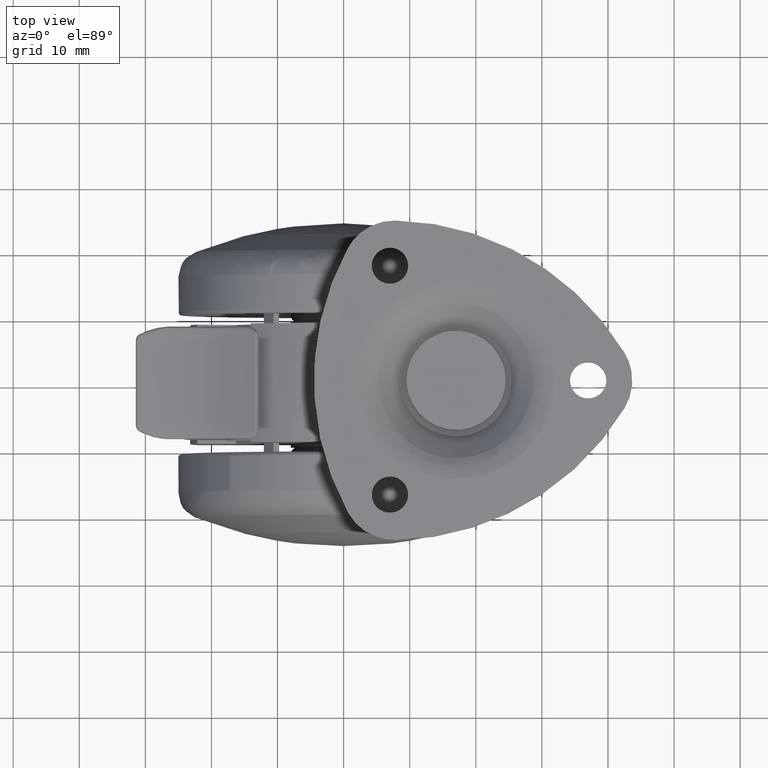
[diagram: clean part render]
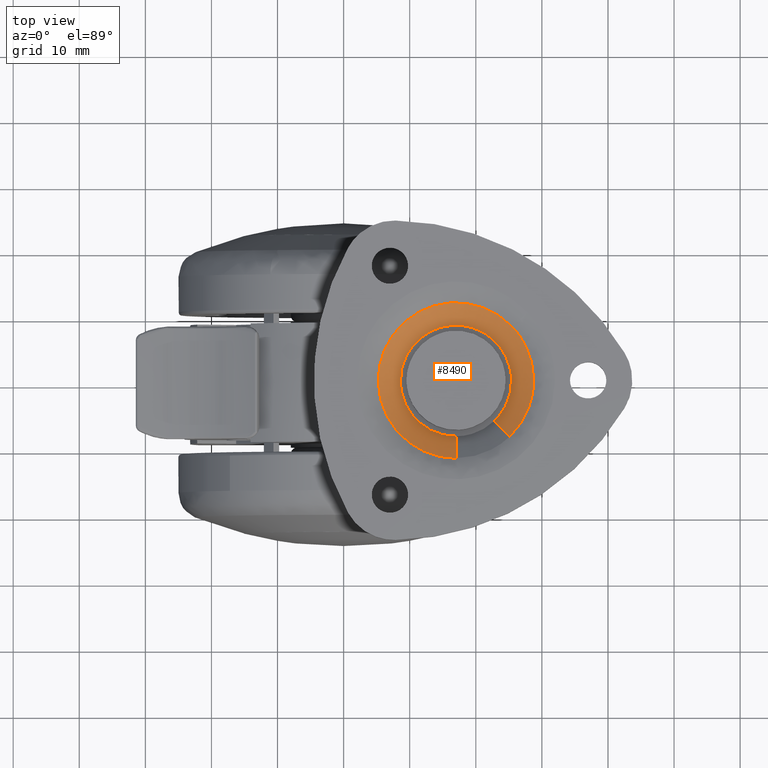
[diagram: same view with one face highlighted and labeled with its STEP entity id]
A machine part, top view. The second image highlights one B-rep face of the part: STEP entity #8490.
In plain terms, the highlighted face is a freeform B-spline surface patch.
Its self-contained STEP definition (entity closure, byte-faithful):
#8320=CARTESIAN_POINT('',(22.738654460055717,-6.025852604467328,35.929386079541928));
#8321=CARTESIAN_POINT('',(25.352421993067953,-3.536659838658650,35.929386079541928));
#8322=CARTESIAN_POINT('',(25.320924323437900,0.072615606467556,35.929386079541928));
#8323=CARTESIAN_POINT('',(25.248308716970342,8.393539929905456,35.929386079541928));
#8324=CARTESIAN_POINT('',(16.927384393532449,8.320924323437900,35.929386079541928));
#8325=CARTESIAN_POINT('',(8.606460070094546,8.248308716970344,35.929386079541928));
#8326=CARTESIAN_POINT('',(8.679075676562100,-0.072615606467556,35.929386079541928));
#8327=CARTESIAN_POINT('',(8.751691283029656,-8.393539929905456,35.929386079541928));
#8328=CARTESIAN_POINT('',(17.072615606467551,-8.320924323437900,35.929386079541928));
#8329=CARTESIAN_POINT('',(25.168920718659930,-8.577744579475180,38.896936086792181));
#8330=CARTESIAN_POINT('',(28.889594249851584,-5.034402059222535,38.896936086792188));
#8331=CARTESIAN_POINT('',(28.844757613002049,0.103367633702259,38.896936086792188));
#8332=CARTESIAN_POINT('',(28.741389979299793,11.948125246704311,38.896936086792188));
#8333=CARTESIAN_POINT('',(16.896632366297741,11.844757613002050,38.896936086792188));
#8334=CARTESIAN_POINT('',(5.051874753295691,11.741389979299791,38.896936086792188));
#8335=CARTESIAN_POINT('',(5.155242386997950,-0.103367633702259,38.896936086792188));
#8336=CARTESIAN_POINT('',(5.258610020700209,-11.948125246704311,38.896936086792188));
#8337=CARTESIAN_POINT('',(17.103367633702259,-11.844757613002050,38.896936086792188));
#8345=(BOUNDED_SURFACE()B_SPLINE_SURFACE(2,1,((#8320,#8329),(#8321,#8330),(#8322,#8331),(#8323,#8332),(#8324,#8333),(#8325,#8334),(#8326,#8335),(#8327,#8336),(#8328,#8337)),.UNSPECIFIED.,.F.,.F.,.U.)B_SPLINE_SURFACE_WITH_KNOTS((3,2,2,2,3),(2,2),(0.0,10.205407823019820,29.831192098057919,49.456976373096033,69.082760648134141),(0.0,4.607027217778358),.UNSPECIFIED.)GEOMETRIC_REPRESENTATION_ITEM()RATIONAL_B_SPLINE_SURFACE(((0.853787705168325,0.853787705168325),(0.847695526217005,0.847695526217005),(1.0,1.0),(0.707106781186548,0.707106781186548),(1.0,1.0),(0.707106781186548,0.707106781186548),(1.0,1.0),(0.707106781186548,0.707106781186548),(1.0,1.0)))REPRESENTATION_ITEM('')SURFACE());
#8346=CARTESIAN_POINT('',(25.109645931739362,-8.515503311656911,38.824556818167459));
#8347=VERTEX_POINT('',#8346);
#8348=CARTESIAN_POINT('',(28.759258215934199,0.0,38.824556818167437));
#8349=VERTEX_POINT('',#8348);
#8350=CARTESIAN_POINT('',(25.109645931739362,-8.515503311656911,38.824556818167459));
#8351=CARTESIAN_POINT('',(28.759258215934199,-5.039835188500448,38.824556818167451));
#8352=CARTESIAN_POINT('',(28.759258215934199,0.0,38.824556818167437));
#8360=(BOUNDED_CURVE()B_SPLINE_CURVE(2,(#8350,#8351,#8352),.UNSPECIFIED.,.F.,.U.)B_SPLINE_CURVE_WITH_KNOTS((3,3),(0.871317023849570,1.0),.UNSPECIFIED.)CURVE()GEOMETRIC_REPRESENTATION_ITEM()RATIONAL_B_SPLINE_CURVE((0.853680523245774,0.849238515635224,1.0))REPRESENTATION_ITEM(''));
#8361=EDGE_CURVE('',#8347,#8349,#8360,.T.);
#8362=ORIENTED_EDGE('',*,*,#8361,.T.);
#8363=CARTESIAN_POINT('',(25.515912687066930,8.109216047165333,38.824556818322669));
#8364=VERTEX_POINT('',#8363);
#8365=CARTESIAN_POINT('',(28.759258215934199,0.0,38.824556818167437));
#8366=CARTESIAN_POINT('',(28.759258215934199,4.703208958523707,38.824556818167437));
#8367=CARTESIAN_POINT('',(25.515912687066926,8.109216047165333,38.824556818322669));
#8375=(BOUNDED_CURVE()B_SPLINE_CURVE(2,(#8365,#8366,#8367),.UNSPECIFIED.,.F.,.U.)B_SPLINE_CURVE_WITH_KNOTS((3,3),(0.0,0.121309405660534),.UNSPECIFIED.)CURVE()GEOMETRIC_REPRESENTATION_ITEM()RATIONAL_B_SPLINE_CURVE((1.0,0.857877190814957,0.853681049734259))REPRESENTATION_ITEM(''));
#8376=EDGE_CURVE('',#8349,#8364,#8375,.T.);
#8377=ORIENTED_EDGE('',*,*,#8376,.T.);
#8378=CARTESIAN_POINT('',(9.391101867627947,8.965758361906424,38.824556818306867));
#8379=VERTEX_POINT('',#8378);
#8380=CARTESIAN_POINT('',(25.515912687066926,8.109216047165333,38.824556818322669));
#8381=CARTESIAN_POINT('',(22.040186523863060,11.759258215934201,38.824556818167444));
#8382=CARTESIAN_POINT('',(17.0,11.759258215934199,38.824556818167437));
#8383=CARTESIAN_POINT('',(12.682753857364199,11.759258215934201,38.824556818167444));
#8384=CARTESIAN_POINT('',(9.391101867627947,8.965758361906424,38.824556818306874));
#8392=(BOUNDED_CURVE()B_SPLINE_CURVE(2,(#8380,#8381,#8382,#8383,#8384),.UNSPECIFIED.,.F.,.U.)B_SPLINE_CURVE_WITH_KNOTS((3,2,3),(0.121309405660534,0.250000000000000,0.362668370166548),.UNSPECIFIED.)CURVE()GEOMETRIC_REPRESENTATION_ITEM()RATIONAL_B_SPLINE_CURVE((0.853681049734259,0.849229590371590,1.0,0.868000793613817,0.854978670802106))REPRESENTATION_ITEM(''));
#8393=EDGE_CURVE('',#8364,#8379,#8392,.T.);
#8394=ORIENTED_EDGE('',*,*,#8393,.T.);
#8395=CARTESIAN_POINT('',(5.240741784065802,0.0,38.824556818167437));
#8396=VERTEX_POINT('',#8395);
#8397=CARTESIAN_POINT('',(9.391101867627949,8.965758361906426,38.824556818306867));
#8398=CARTESIAN_POINT('',(5.240741784065802,5.443505606948998,38.824556818167444));
#8399=CARTESIAN_POINT('',(5.240741784065802,0.0,38.824556818167437));
#8407=(BOUNDED_CURVE()B_SPLINE_CURVE(2,(#8397,#8398,#8399),.UNSPECIFIED.,.F.,.U.)B_SPLINE_CURVE_WITH_KNOTS((3,3),(0.362668370166548,0.500000000000000),.UNSPECIFIED.)CURVE()GEOMETRIC_REPRESENTATION_ITEM()RATIONAL_B_SPLINE_CURVE((0.854978670802106,0.839105987572731,1.0))REPRESENTATION_ITEM(''));
#8408=EDGE_CURVE('',#8379,#8396,#8407,.T.);
#8409=ORIENTED_EDGE('',*,*,#8408,.T.);
#8410=CARTESIAN_POINT('',(17.102617584279660,-11.758810459416919,38.824556818170322));
#8411=VERTEX_POINT('',#8410);
#8412=CARTESIAN_POINT('',(5.240741784065802,0.0,38.824556818167437));
#8413=CARTESIAN_POINT('',(5.240741784065801,-11.759258215934201,38.824556818167444));
#8414=CARTESIAN_POINT('',(17.0,-11.759258215934199,38.824556818167437));
#8415=CARTESIAN_POINT('',(17.051309769011041,-11.759258215934207,38.824556818167437));
#8416=CARTESIAN_POINT('',(17.102617584279660,-11.758810459416926,38.824556818170315));
#8424=(BOUNDED_CURVE()B_SPLINE_CURVE(2,(#8412,#8413,#8414,#8415,#8416),.UNSPECIFIED.,.F.,.U.)B_SPLINE_CURVE_WITH_KNOTS((3,2,3),(0.500000000000000,0.750000000000000,0.751539894335697),.UNSPECIFIED.)CURVE()GEOMETRIC_REPRESENTATION_ITEM()RATIONAL_B_SPLINE_CURVE((1.0,0.707106781186548,1.0,0.998195901565540,0.996414028098762))REPRESENTATION_ITEM(''));
#8425=EDGE_CURVE('',#8396,#8411,#8424,.T.);
#8426=ORIENTED_EDGE('',*,*,#8425,.T.);
#8427=CARTESIAN_POINT('',(17.073347362169208,-8.404775204827331,36.000000000017643));
#8428=VERTEX_POINT('',#8427);
#8429=CARTESIAN_POINT('',(17.073347362169208,-8.404775204827331,36.000000000017643));
#8430=CARTESIAN_POINT('',(17.102617584279660,-11.758810459416919,38.824556818170322));
#8431=QUASI_UNIFORM_CURVE('',1,(#8429,#8430),.UNSPECIFIED.,.F.,.U.);
#8432=EDGE_CURVE('',#8428,#8411,#8431,.T.);
#8433=ORIENTED_EDGE('',*,*,#8432,.F.);
#8434=CARTESIAN_POINT('',(8.594904754920050,0.0,36.0));
#8435=VERTEX_POINT('',#8434);
#8436=CARTESIAN_POINT('',(17.073347362169208,-8.404775204827331,36.000000000017636));
#8437=CARTESIAN_POINT('',(17.036674379381328,-8.405095245079950,36.0));
#8438=CARTESIAN_POINT('',(17.0,-8.405095245079950,36.0));
#8439=CARTESIAN_POINT('',(8.594904754920050,-8.405095245079950,36.0));
#8440=CARTESIAN_POINT('',(8.594904754920050,0.0,36.0));
#8448=(BOUNDED_CURVE()B_SPLINE_CURVE(2,(#8436,#8437,#8438,#8439,#8440),.UNSPECIFIED.,.F.,.U.)B_SPLINE_CURVE_WITH_KNOTS((3,2,3),(0.748460105658909,0.750000000000000,1.0),.UNSPECIFIED.)CURVE()GEOMETRIC_REPRESENTATION_ITEM()RATIONAL_B_SPLINE_CURVE((0.996414028086280,0.998195901559221,1.0,0.707106781186547,1.0))REPRESENTATION_ITEM(''));
#8449=EDGE_CURVE('',#8428,#8435,#8448,.T.);
#8450=ORIENTED_EDGE('',*,*,#8449,.T.);
#8451=CARTESIAN_POINT('',(25.405095245079949,0.0,36.0));
#8452=VERTEX_POINT('',#8451);
#8453=CARTESIAN_POINT('',(8.594904754920050,0.0,36.0));
#8454=CARTESIAN_POINT('',(8.594904754920050,8.405095245079950,36.0));
#8455=CARTESIAN_POINT('',(17.0,8.405095245079950,36.0));
#8456=CARTESIAN_POINT('',(25.405095245079956,8.405095245079950,36.0));
#8457=CARTESIAN_POINT('',(25.405095245079949,0.0,36.0));
#8465=(BOUNDED_CURVE()B_SPLINE_CURVE(2,(#8453,#8454,#8455,#8456,#8457),.UNSPECIFIED.,.F.,.U.)B_SPLINE_CURVE_WITH_KNOTS((3,2,3),(0.0,0.250000000000000,0.500000000000000),.UNSPECIFIED.)CURVE()GEOMETRIC_REPRESENTATION_ITEM()RATIONAL_B_SPLINE_CURVE((1.0,0.707106781186547,1.0,0.707106781186547,1.0))REPRESENTATION_ITEM(''));
#8466=EDGE_CURVE('',#8435,#8452,#8465,.T.);
#8467=ORIENTED_EDGE('',*,*,#8466,.T.);
#8468=CARTESIAN_POINT('',(22.796483520352261,-6.086575792442854,36.000000000000057));
#8469=VERTEX_POINT('',#8468);
#8470=CARTESIAN_POINT('',(25.405095245079949,0.0,36.0));
#8471=CARTESIAN_POINT('',(25.405095245079959,-3.602293103940296,36.000000000000007));
#8472=CARTESIAN_POINT('',(22.796483520352265,-6.086575792442854,36.000000000000064));
#8480=(BOUNDED_CURVE()B_SPLINE_CURVE(2,(#8470,#8471,#8472),.UNSPECIFIED.,.F.,.U.)B_SPLINE_CURVE_WITH_KNOTS((3,3),(0.500000000000000,0.628682976150072),.UNSPECIFIED.)CURVE()GEOMETRIC_REPRESENTATION_ITEM()RATIONAL_B_SPLINE_CURVE((1.0,0.849238515635643,0.853680523245750))REPRESENTATION_ITEM(''));
#8481=EDGE_CURVE('',#8452,#8469,#8480,.T.);
#8482=ORIENTED_EDGE('',*,*,#8481,.T.);
#8483=CARTESIAN_POINT('',(22.796483520352261,-6.086575792442854,36.000000000000057));
#8484=CARTESIAN_POINT('',(25.109645931739362,-8.515503311656911,38.824556818167459));
#8485=QUASI_UNIFORM_CURVE('',1,(#8483,#8484),.UNSPECIFIED.,.F.,.U.);
#8486=EDGE_CURVE('',#8469,#8347,#8485,.T.);
#8487=ORIENTED_EDGE('',*,*,#8486,.T.);
#8488=EDGE_LOOP('',(#8362,#8377,#8394,#8409,#8426,#8433,#8450,#8467,#8482,#8487));
#8489=FACE_OUTER_BOUND('',#8488,.T.);
#8490=ADVANCED_FACE('',(#8489),#8345,.F.);